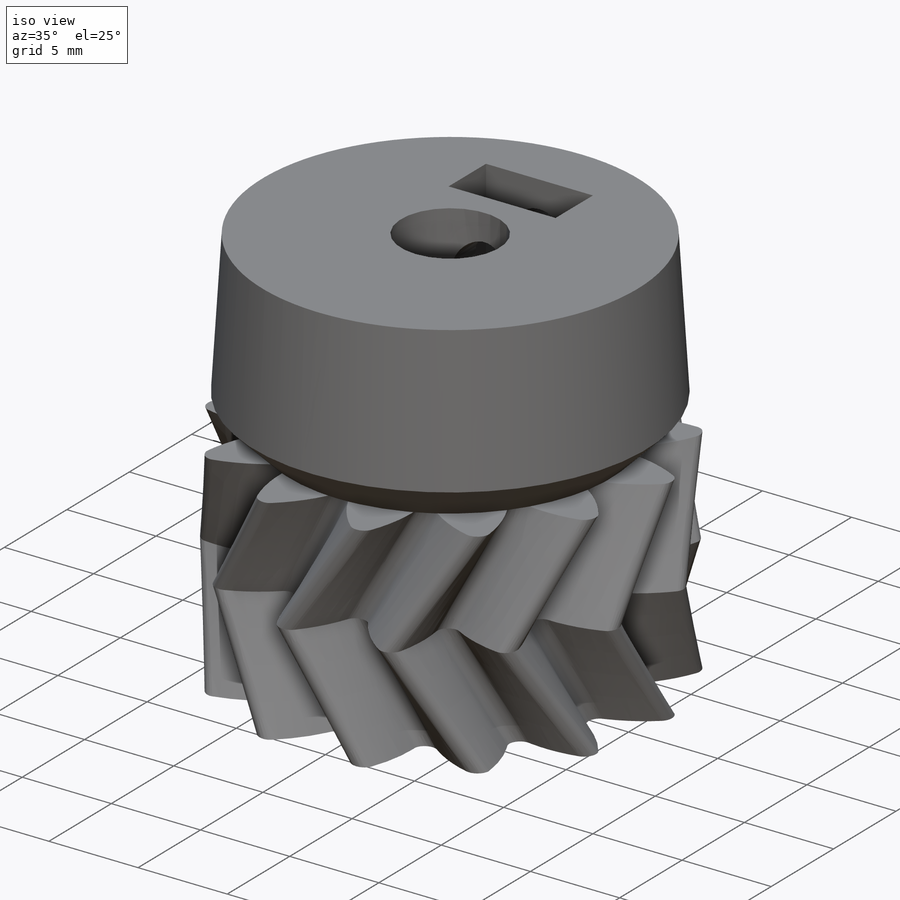
[diagram: iso view]
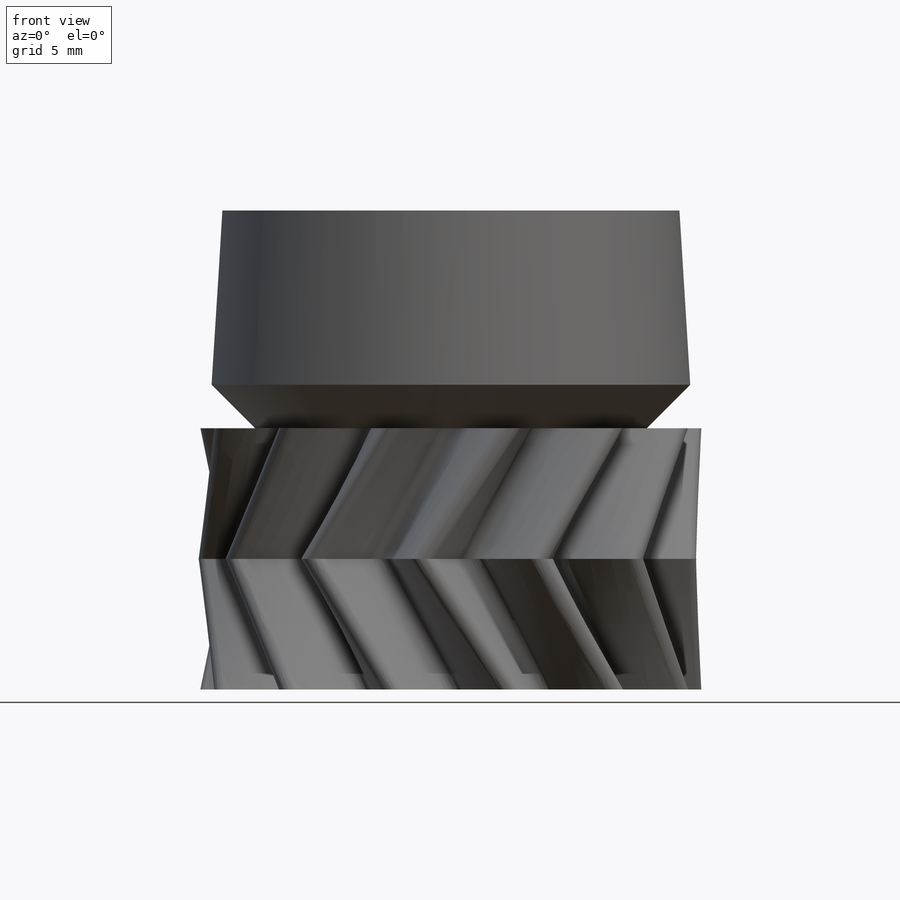
[diagram: front view]
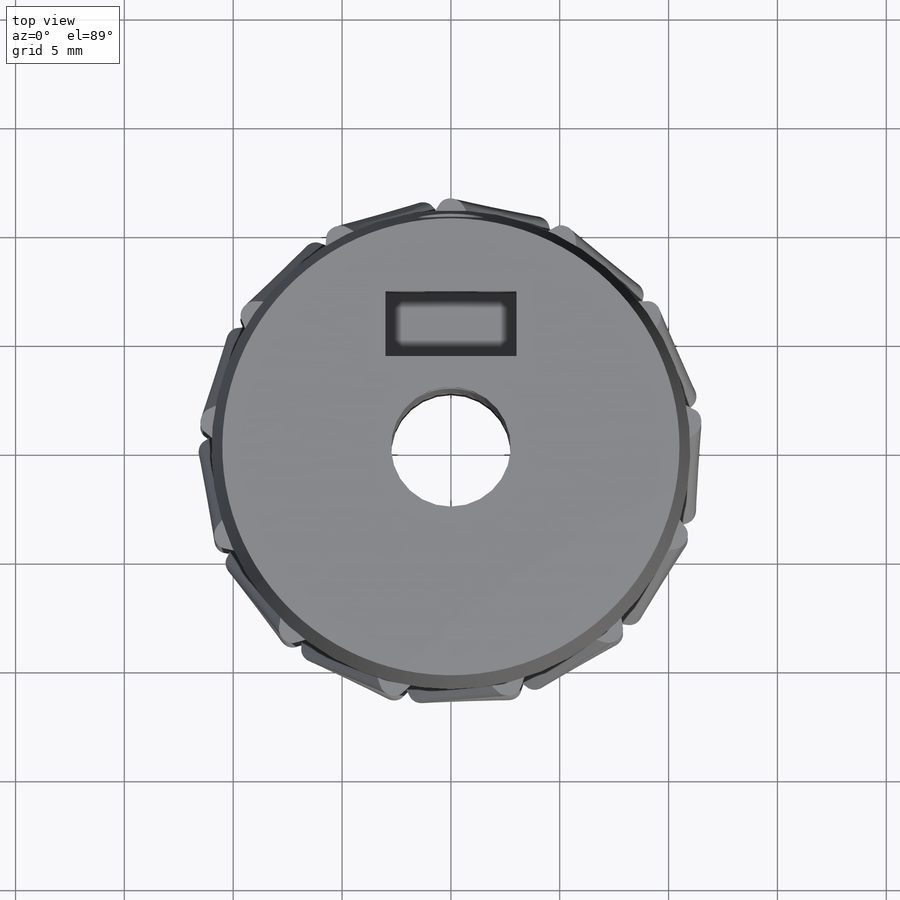
[diagram: top view]
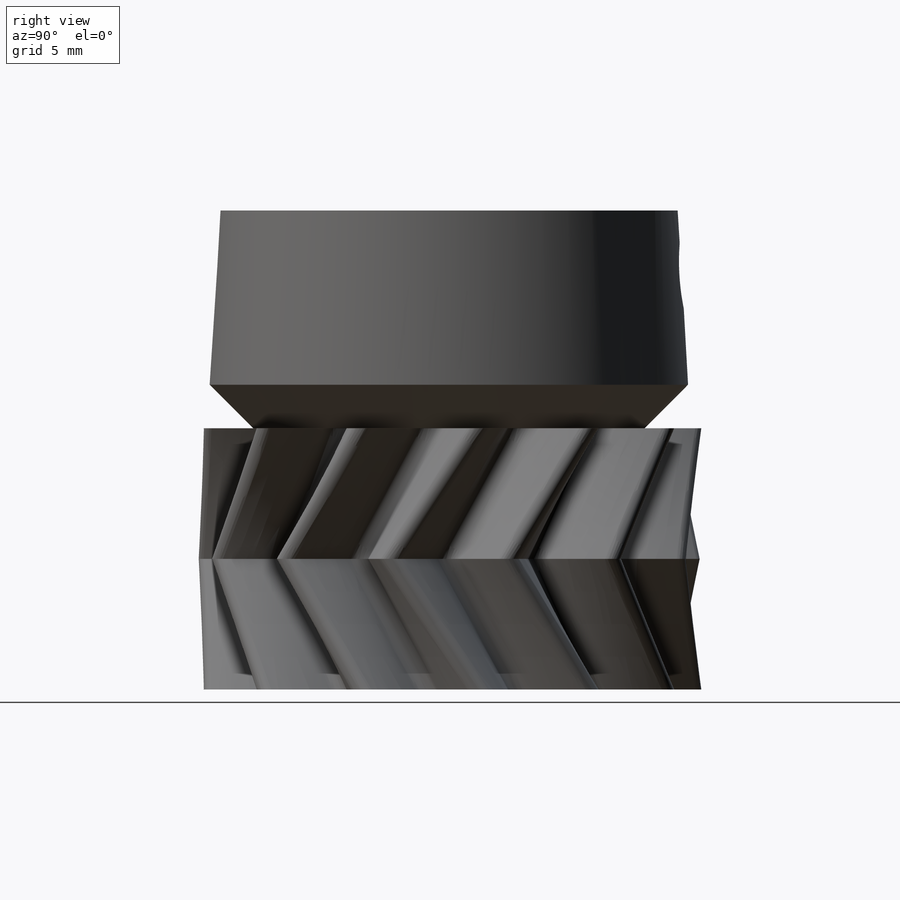
[diagram: right view]
SOLIDWORKS PART (.sldprt)
format: sldprt  version: not decoded by parser v0  size: 1,199,104 bytes
history: native  units: mm
features: sketch x9, plane x4, cut_extrude x3, fillet x2, material x1 (+11 scaffold rows collapsed)
feature tree (30):
  scaffold x11  (default folders/planes/origin — collapsed)
  material  "Material <not specified>"
  sketch  "Sketch1"  dims[c1.D1=15.0mm c1.D2=24.0mm c1.D5=7.75mm c1.D6=7.25mm c2.D5=~6.970848mm c2.D7=~5.051761mm c2.D6=~3.561491mm c2.D3=13.0 c2.D4=13.0 c3.D5=13.0]
  plane  "Plane3"  Offset=6mm
  sketch  "Sketch2"  dims[c1.D3=22.0mm c1.D5=7.25mm c2.D3=~2.651807mm c2.D4=~1.928587mm c3.D3=~0.883936mm c3.D4=~3.756892mm c4.D4=~88.967147deg c4.D5=~0.642862mm c4.D6=~3.596712mm c5.D6=~88.967147deg c5.D7=~2.68036mm c6.D7=~88.967147deg c6.D8=~3.596712mm c7.D8=~86.12334deg c7.D9=~3.596712mm c8.D9=~86.12334deg c8.D10=~3.701308mm c9.D10=~81.643784deg c9.D11=~2.978127mm c10.D11=~77.109082deg c10.D12=~1.572693mm c11.D12=~73.58249deg c11.D13=~3.75193mm c12.D13=~71.473294deg c12.D14=~3.232465mm c13.D14=~70.840459deg c13.D15=~3.232465mm c14.D15=~71.653546deg c14.D16=~3.75193mm c15.D16=~73.879709deg c15.D17=~3.756892mm c16.D17=~77.410442deg c16.D3=~1.44644mm c16.D4=~0.843757mm c16.D1=13.0 c16.D2=13.0 c16.D6=13.0]
  plane  "Plane4"  Offset=6mm
  sketch  "Sketch3"  dims[c1.D1=7.25mm c1.D2=~5.043888mm c2.D2=13.0]
  sketch  "Sketch4"  dims[D1=18.0mm]
  plane  "Plane5"  Offset=2mm
  sketch  "Sketch5"  dims[D1=22.0mm]
  plane  "Plane6"  Offset=8mm
  sketch  "Sketch6"  dims[D1=21.0mm]
  sketch  "Sketch7"  dims[D1=5.5mm D2=5.0mm]
  cut_extrude  "Cut-Extrude1"  [1 undecoded]
  sketch  "Sketch8"  dims[D2=3.0mm D1=3.0mm]
  cut_extrude  "Cut-Extrude2"  [1 undecoded]
  sketch  "Sketch9"  dims[c1.D4=5.0mm c1.D1=6.0mm c1.D2=6.0mm c1.D3=3.0mm c2.D1=5.65mm]
  cut_extrude  "Cut-Extrude3"  Depth=5.5mm
  fillet  "Fillet5"  Radius=0.5mm
  fillet  "Fillet6"  Radius=0.5mm
decode coverage: 12 of 14 modeling features carry decoded parameters
note: ~ marks probable driven/reference dimensions
note: 2 parameter values undecoded
note: suppression state not decoded; provenance and decode notes live in map.json
